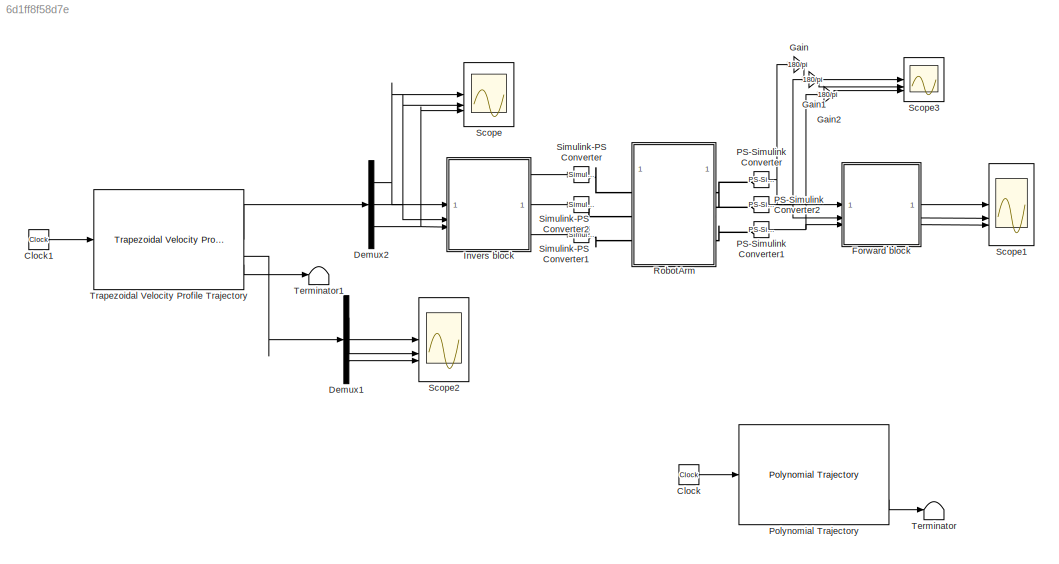
MODEL slx_6d1ff8f58d7e
KIND model
CONFIG AbsTol = auto
CONFIG EnableMultiTasking = off
CONFIG FixedStep = 0.001
CONFIG MaxStep = auto
CONFIG MinStep = auto
CONFIG RelTol = 1e-3
CONFIG SampleTimeConstraint = Unconstrained
CONFIG SolverName = VariableStepAuto
CONFIG StartTime = 0.0
CONFIG StopTime = 10.0
WORKSPACE source: external: MATLAB File  (data not in archive)
BLOCK [Clock] Clock
  Commented = on
BLOCK [Clock] Clock1
BLOCK [Demux] Demux1
  Outputs = 3
BLOCK [Demux] Demux2
  Outputs = 3
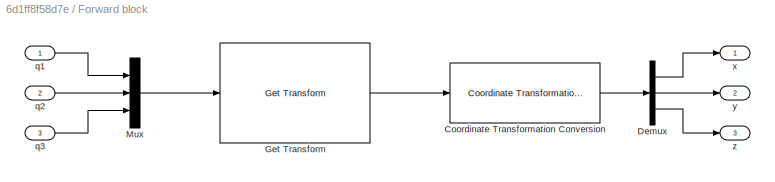
BLOCK [SubSystem] Forward block
BLOCK [Reference] Forward block/Coordinate Transformation Conversion  REF=robotcorelib/Coordinate Transformation Conversion
  LibrarySourceBlock = robotutilslib/Coordinate Transformation Conversion
  SourceBlock = robotcorelib/Coordinate Transformation Conversion
  SourceType = robotics.slcore.internal.block.CoordinateTransformationConversion
BLOCK [Demux] Forward block/Demux
  Outputs = 3
BLOCK [Reference] Forward block/Get Transform  REF=robotmaniplib/Get Transform
  SourceBlock = robotmaniplib/Get Transform
  SourceType = Get Transform
BLOCK [Mux] Forward block/Mux
  DisplayOption = bar
  Inputs = 3
BLOCK [Inport] Forward block/q1
BLOCK [Inport] Forward block/q2
  Port = 2
BLOCK [Inport] Forward block/q3
  Port = 3
BLOCK [Outport] Forward block/x
BLOCK [Outport] Forward block/y
  Port = 2
BLOCK [Outport] Forward block/z
  Port = 3
BLOCK [Gain] Gain
  Gain = 180/pi
BLOCK [Gain] Gain1
  Gain = 180/pi
BLOCK [Gain] Gain2
  Gain = 180/pi
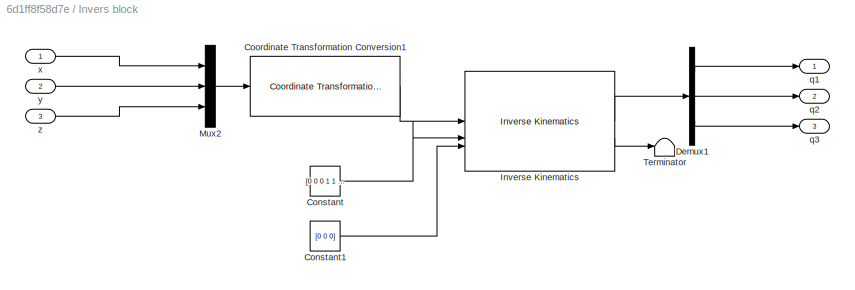
BLOCK [SubSystem] Invers block
BLOCK [Constant] Invers block/Constant
  Value = [0 0 0 1 1 1]
BLOCK [Constant] Invers block/Constant1
  Value = [0 0 0]
BLOCK [Reference] Invers block/Coordinate Transformation Conversion1  REF=robotcorelib/Coordinate Transformation Conversion
  LibrarySourceBlock = robotutilslib/Coordinate Transformation Conversion
  SourceBlock = robotcorelib/Coordinate Transformation Conversion
  SourceType = robotics.slcore.internal.block.CoordinateTransformationConversion
BLOCK [Demux] Invers block/Demux1
  Outputs = 3
BLOCK [Reference] Invers block/Inverse Kinematics  REF=robotmaniplib/Inverse Kinematics
  SourceBlock = robotmaniplib/Inverse Kinematics
  SourceType = Inverse Kinematics
BLOCK [Mux] Invers block/Mux2
  DisplayOption = bar
  Inputs = 3
BLOCK [Terminator] Invers block/Terminator
  NameLocation = top
BLOCK [Outport] Invers block/q1
BLOCK [Outport] Invers block/q2
  Port = 2
BLOCK [Outport] Invers block/q3
  Port = 3
BLOCK [Inport] Invers block/x
BLOCK [Inport] Invers block/y
  Port = 2
BLOCK [Inport] Invers block/z
  Port = 3
BLOCK [Reference] PS-Simulink Converter  REF=nesl_utility/PS-Simulink
Converter
  SourceBlock = nesl_utility/PS-Simulink\nConverter
  SourceType = PS-Simulink\nConverter
BLOCK [Reference] PS-Simulink Converter1  REF=nesl_utility/PS-Simulink
Converter
  SourceBlock = nesl_utility/PS-Simulink\nConverter
  SourceType = PS-Simulink\nConverter
BLOCK [Reference] PS-Simulink Converter2  REF=nesl_utility/PS-Simulink
Converter
  SourceBlock = nesl_utility/PS-Simulink\nConverter
  SourceType = PS-Simulink\nConverter
BLOCK [Reference] Polynomial Trajectory  REF=robotcorelib/Polynomial Trajectory
  Commented = on
  LibrarySourceBlock = robotutilslib/Polynomial Trajectory
  SourceBlock = robotcorelib/Polynomial Trajectory
  SourceType = robotics.slcore.internal.block.PolyTrajSys
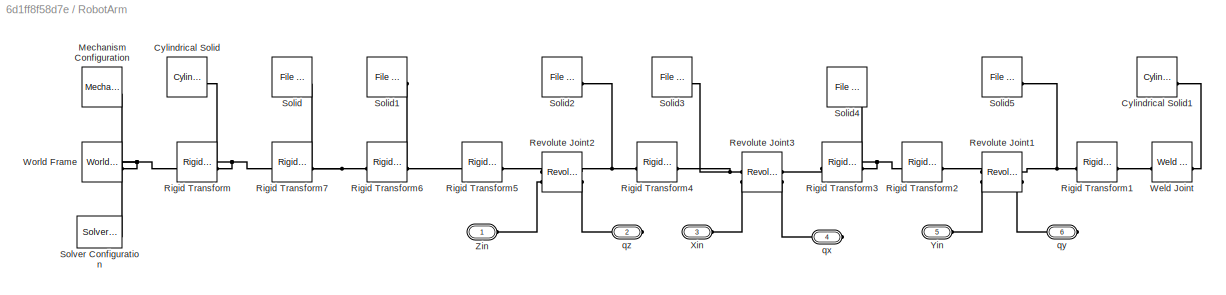
BLOCK [SubSystem] RobotArm
BLOCK [Reference] RobotArm/Cylindrical Solid  REF=sm_lib/Body Elements/Cylindrical Solid
  SourceBlock = sm_lib/Body Elements/Cylindrical Solid
  SourceType = Cylindrical Solid
BLOCK [Reference] RobotArm/Cylindrical Solid1  REF=sm_lib/Body Elements/Cylindrical Solid
  SourceBlock = sm_lib/Body Elements/Cylindrical Solid
  SourceType = Cylindrical Solid
BLOCK [Reference] RobotArm/Mechanism Configuration  REF=sm_lib/Utilities/Mechanism
Configuration
  SourceBlock = sm_lib/Utilities/Mechanism\nConfiguration
  SourceType = Mechanism\nConfiguration
BLOCK [Reference] RobotArm/Revolute Joint1  REF=sm_lib/Joints/Revolute Joint
  SourceBlock = sm_lib/Joints/Revolute Joint
  SourceType = Revolute Joint
BLOCK [Reference] RobotArm/Revolute Joint2  REF=sm_lib/Joints/Revolute Joint
  SourceBlock = sm_lib/Joints/Revolute Joint
  SourceType = Revolute Joint
BLOCK [Reference] RobotArm/Revolute Joint3  REF=sm_lib/Joints/Revolute Joint
  SourceBlock = sm_lib/Joints/Revolute Joint
  SourceType = Revolute Joint
BLOCK [Reference] RobotArm/Rigid Transform  REF=sm_lib/Frames and
Transforms/Rigid
Transform
  SourceBlock = sm_lib/Frames and\nTransforms/Rigid\nTransform
  SourceType = Rigid\nTransform
BLOCK [Reference] RobotArm/Rigid Transform1  REF=sm_lib/Frames and
Transforms/Rigid
Transform
  SourceBlock = sm_lib/Frames and\nTransforms/Rigid\nTransform
  SourceType = Rigid\nTransform
BLOCK [Reference] RobotArm/Rigid Transform2  REF=sm_lib/Frames and
Transforms/Rigid
Transform
  SourceBlock = sm_lib/Frames and\nTransforms/Rigid\nTransform
  SourceType = Rigid\nTransform
BLOCK [Reference] RobotArm/Rigid Transform3  REF=sm_lib/Frames and
Transforms/Rigid
Transform
  SourceBlock = sm_lib/Frames and\nTransforms/Rigid\nTransform
  SourceType = Rigid\nTransform
BLOCK [Reference] RobotArm/Rigid Transform4  REF=sm_lib/Frames and
Transforms/Rigid
Transform
  SourceBlock = sm_lib/Frames and\nTransforms/Rigid\nTransform
  SourceType = Rigid\nTransform
BLOCK [Reference] RobotArm/Rigid Transform5  REF=sm_lib/Frames and
Transforms/Rigid
Transform
  SourceBlock = sm_lib/Frames and\nTransforms/Rigid\nTransform
  SourceType = Rigid\nTransform
BLOCK [Reference] RobotArm/Rigid Transform6  REF=sm_lib/Frames and
Transforms/Rigid
Transform
  SourceBlock = sm_lib/Frames and\nTransforms/Rigid\nTransform
  SourceType = Rigid\nTransform
BLOCK [Reference] RobotArm/Rigid Transform7  REF=sm_lib/Frames and
Transforms/Rigid
Transform
  SourceBlock = sm_lib/Frames and\nTransforms/Rigid\nTransform
  SourceType = Rigid\nTransform
BLOCK [Reference] RobotArm/Solid  REF=sm_lib/Body Elements/File Solid
  SourceBlock = sm_lib/Body Elements/File Solid
  SourceType = File Solid
BLOCK [Reference] RobotArm/Solid1  REF=sm_lib/Body Elements/File Solid
  SourceBlock = sm_lib/Body Elements/File Solid
  SourceType = File Solid
BLOCK [Reference] RobotArm/Solid2  REF=sm_lib/Body Elements/File Solid
  SourceBlock = sm_lib/Body Elements/File Solid
  SourceType = File Solid
BLOCK [Reference] RobotArm/Solid3  REF=sm_lib/Body Elements/File Solid
  SourceBlock = sm_lib/Body Elements/File Solid
  SourceType = File Solid
BLOCK [Reference] RobotArm/Solid4  REF=sm_lib/Body Elements/File Solid
  SourceBlock = sm_lib/Body Elements/File Solid
  SourceType = File Solid
BLOCK [Reference] RobotArm/Solid5  REF=sm_lib/Body Elements/File Solid
  SourceBlock = sm_lib/Body Elements/File Solid
  SourceType = File Solid
BLOCK [Reference] RobotArm/Solver Configuration  REF=nesl_utility/Solver
Configuration
  SourceBlock = nesl_utility/Solver\nConfiguration
  SourceType = Solver\nConfiguration
BLOCK [Reference] RobotArm/Weld Joint  REF=sm_lib/Joints/Weld Joint
  SourceBlock = sm_lib/Joints/Weld Joint
  SourceType = Weld Joint
BLOCK [Reference] RobotArm/World Frame  REF=sm_lib/Frames and
Transforms/World Frame
  SourceBlock = sm_lib/Frames and\nTransforms/World Frame
  SourceType = World Frame
BLOCK [PMIOPort] RobotArm/Xin
  Port = 3
  Side = Left
BLOCK [PMIOPort] RobotArm/Yin
  Port = 5
  Side = Left
BLOCK [PMIOPort] RobotArm/Zin
  Side = Left
BLOCK [PMIOPort] RobotArm/qx
  Port = 4
  Side = Right
BLOCK [PMIOPort] RobotArm/qy
  Port = 6
  Side = Right
BLOCK [PMIOPort] RobotArm/qz
  Port = 2
  Side = Right
BLOCK [Scope] Scope
  Floating = off
  NumInputPorts = 3
  ScopeSpecificationString = Simulink.scopes.TimeScopeBlockCfg('CurrentConfiguration', extmgr.ConfigurationSet(extmgr.Configuration('Core','General UI',true),extmgr.Configuration('Core','Source UI',true),extmgr.Configuration('Sources','WiredSimulink',true,'DataLoggingVariableName','ScopeData1'),extmgr.Configuration('Visuals','Time Domain',true,'SerializedDisplays',{struct('MinYLimReal','0.12375','MaxYLimReal','0.18625','YLabe...<+2776ch>
BLOCK [Scope] Scope1
  Floating = off
  NumInputPorts = 3
  ScopeSpecificationString = Simulink.scopes.TimeScopeBlockCfg('CurrentConfiguration', extmgr.ConfigurationSet(extmgr.Configuration('Core','General UI',true),extmgr.Configuration('Core','Source UI',true),extmgr.Configuration('Sources','WiredSimulink',true),extmgr.Configuration('Visuals','Time Domain',true,'SerializedDisplays',{struct('MinYLimReal','-0.14346','MaxYLimReal','0.01303','YLabelReal','','MinYLimMag','0.00000','MaxY...<+2857ch>
BLOCK [Scope] Scope2
  Floating = off
  NumInputPorts = 3
  ScopeSpecificationString = Simulink.scopes.TimeScopeBlockCfg('CurrentConfiguration', extmgr.ConfigurationSet(extmgr.Configuration('Core','General UI',true),extmgr.Configuration('Core','Source UI',true),extmgr.Configuration('Sources','WiredSimulink',true,'DataLoggingVariableName','ScopeData1'),extmgr.Configuration('Visuals','Time Domain',true,'SerializedDisplays',{struct('MinYLimReal','-2.95338','MaxYLimReal','-0.95338','YLa...<+2652ch>
BLOCK [Scope] Scope3
  Floating = off
  NumInputPorts = 3
  ScopeSpecificationString = Simulink.scopes.TimeScopeBlockCfg('CurrentConfiguration', extmgr.ConfigurationSet(extmgr.Configuration('Core','General UI',true),extmgr.Configuration('Core','Source UI',true),extmgr.Configuration('Sources','WiredSimulink',true,'DataLoggingVariableName','ScopeData1'),extmgr.Configuration('Visuals','Time Domain',true,'SerializedDisplays',{struct('MinYLimReal','1.87941','MaxYLimReal','3.06236','YLabe...<+2820ch>
BLOCK [Reference] Simulink-PS Converter  REF=nesl_utility/Simulink-PS
Converter
  SourceBlock = nesl_utility/Simulink-PS\nConverter
  SourceType = Simulink-PS\nConverter
BLOCK [Reference] Simulink-PS Converter1  REF=nesl_utility/Simulink-PS
Converter
  SourceBlock = nesl_utility/Simulink-PS\nConverter
  SourceType = Simulink-PS\nConverter
BLOCK [Reference] Simulink-PS Converter2  REF=nesl_utility/Simulink-PS
Converter
  SourceBlock = nesl_utility/Simulink-PS\nConverter
  SourceType = Simulink-PS\nConverter
BLOCK [Terminator] Terminator
  Commented = on
BLOCK [Terminator] Terminator1
BLOCK [Reference] Trapezoidal Velocity Profile Trajectory  REF=robotcorelib/Trapezoidal Velocity Profile Trajectory
  LibrarySourceBlock = robotutilslib/Trapezoidal Velocity Profile Trajectory
  SourceBlock = robotcorelib/Trapezoidal Velocity Profile Trajectory
  SourceType = robotics.slcore.internal.block.TrapVelTrajSys
LINE Clock1:1 -> Trapezoidal Velocity Profile Trajectory:1
LINE Clock:1 -> Polynomial Trajectory:1
LINE Demux1:1 -> Scope2:1
LINE Demux1:2 -> Scope2:2
LINE Demux1:3 -> Scope2:3
NET Demux2:1 -> Invers block:1, Scope:1
NET Demux2:2 -> Invers block:2, Scope:2
NET Demux2:3 -> Invers block:3, Scope:3
LINE Forward block/Coordinate Transformation Conversion:1 -> Forward block/Demux:1
LINE Forward block/Demux:1 -> Forward block/x:1
LINE Forward block/Demux:2 -> Forward block/y:1
LINE Forward block/Demux:3 -> Forward block/z:1
LINE Forward block/Get Transform:1 -> Forward block/Coordinate Transformation Conversion:1
LINE Forward block/Mux:1 -> Forward block/Get Transform:1
LINE Forward block/q1:1 -> Forward block/Mux:1
LINE Forward block/q2:1 -> Forward block/Mux:2
LINE Forward block/q3:1 -> Forward block/Mux:3
LINE Forward block:1 -> Scope1:1
LINE Forward block:2 -> Scope1:2
LINE Forward block:3 -> Scope1:3
LINE Gain1:1 -> Scope3:2
LINE Gain2:1 -> Scope3:3
LINE Gain:1 -> Scope3:1
LINE Invers block/Constant1:1 -> Invers block/Inverse Kinematics:3
LINE Invers block/Constant:1 -> Invers block/Inverse Kinematics:2
LINE Invers block/Coordinate Transformation Conversion1:1 -> Invers block/Inverse Kinematics:1
LINE Invers block/Demux1:1 -> Invers block/q1:1
LINE Invers block/Demux1:2 -> Invers block/q2:1
LINE Invers block/Demux1:3 -> Invers block/q3:1
LINE Invers block/Inverse Kinematics:1 -> Invers block/Demux1:1
LINE Invers block/Inverse Kinematics:2 -> Invers block/Terminator:1
LINE Invers block/Mux2:1 -> Invers block/Coordinate Transformation Conversion1:1
LINE Invers block/x:1 -> Invers block/Mux2:1
LINE Invers block/y:1 -> Invers block/Mux2:2
LINE Invers block/z:1 -> Invers block/Mux2:3
LINE Invers block:1 -> Simulink-PS Converter:1
LINE Invers block:2 -> Simulink-PS Converter2:1
LINE Invers block:3 -> Simulink-PS Converter1:1
NET PS-Simulink Converter1:1 -> Forward block:3, Gain2:1
NET PS-Simulink Converter2:1 -> Forward block:2, Gain1:1
NET PS-Simulink Converter:1 -> Forward block:1, Gain:1
LINE Polynomial Trajectory:3 -> Terminator:1
LINE Trapezoidal Velocity Profile Trajectory:1 -> Demux2:1
LINE Trapezoidal Velocity Profile Trajectory:2 -> Demux1:1
LINE Trapezoidal Velocity Profile Trajectory:3 -> Terminator1:1
PLINE PS-Simulink Converter1:LConn1 -- RobotArm:RConn3
PLINE PS-Simulink Converter2:LConn1 -- RobotArm:RConn2
PLINE PS-Simulink Converter:LConn1 -- RobotArm:RConn1
PLINE RobotArm/Cylindrical Solid1:RConn1 -- RobotArm/Weld Joint:RConn1
PNET net1: RobotArm/Cylindrical Solid:RConn1 -- RobotArm/Rigid Transform7:LConn1 -- RobotArm/Rigid Transform:RConn1
PNET net2: RobotArm/Mechanism Configuration:RConn1 -- RobotArm/Rigid Transform:LConn1 -- RobotArm/Solver Configuration:RConn1 -- RobotArm/World Frame:RConn1
PLINE RobotArm/Revolute Joint1:LConn1 -- RobotArm/Rigid Transform2:RConn1
PLINE RobotArm/Revolute Joint1:LConn2 -- RobotArm/Yin:RConn1
PNET net3: RobotArm/Revolute Joint1:RConn1 -- RobotArm/Rigid Transform1:LConn1 -- RobotArm/Solid5:RConn1
PLINE RobotArm/Revolute Joint1:RConn2 -- RobotArm/qy:RConn1
PLINE RobotArm/Revolute Joint2:LConn1 -- RobotArm/Rigid Transform5:RConn1
PLINE RobotArm/Revolute Joint2:LConn2 -- RobotArm/Zin:RConn1
PNET net4: RobotArm/Revolute Joint2:RConn1 -- RobotArm/Rigid Transform4:LConn1 -- RobotArm/Solid2:RConn1
PLINE RobotArm/Revolute Joint2:RConn2 -- RobotArm/qz:RConn1
PNET net5: RobotArm/Revolute Joint3:LConn1 -- RobotArm/Rigid Transform4:RConn1 -- RobotArm/Solid3:RConn1
PLINE RobotArm/Revolute Joint3:LConn2 -- RobotArm/Xin:RConn1
PLINE RobotArm/Revolute Joint3:RConn1 -- RobotArm/Rigid Transform3:LConn1
PLINE RobotArm/Revolute Joint3:RConn2 -- RobotArm/qx:RConn1
PLINE RobotArm/Rigid Transform1:RConn1 -- RobotArm/Weld Joint:LConn1
PNET net6: RobotArm/Rigid Transform2:LConn1 -- RobotArm/Rigid Transform3:RConn1 -- RobotArm/Solid4:RConn1
PNET net7: RobotArm/Rigid Transform5:LConn1 -- RobotArm/Rigid Transform6:RConn1 -- RobotArm/Solid1:RConn1
PNET net8: RobotArm/Rigid Transform6:LConn1 -- RobotArm/Rigid Transform7:RConn1 -- RobotArm/Solid:RConn1
PLINE RobotArm:LConn1 -- Simulink-PS Converter:RConn1
PLINE RobotArm:LConn2 -- Simulink-PS Converter2:RConn1
PLINE RobotArm:LConn3 -- Simulink-PS Converter1:RConn1
note: NET lines group one-source signal fan-out (src -> all destinations, sorted); 1:1 wires keep LINE; PNET lines group multi-terminal physical nets as a canonical sorted terminal list (undirected conserving connections); 2-terminal nets keep the pairwise PLINE form
